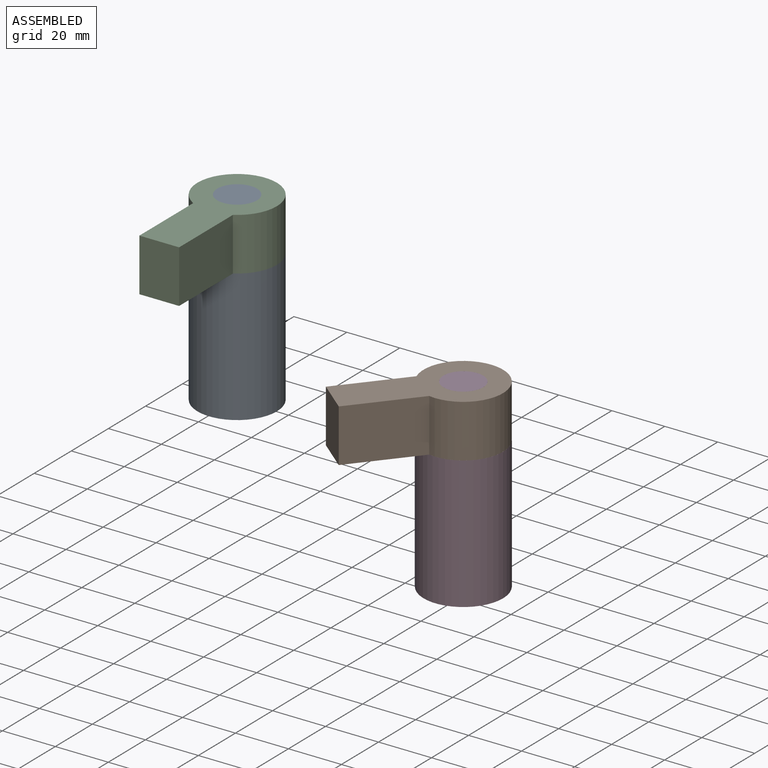
[diagram: assembled view]
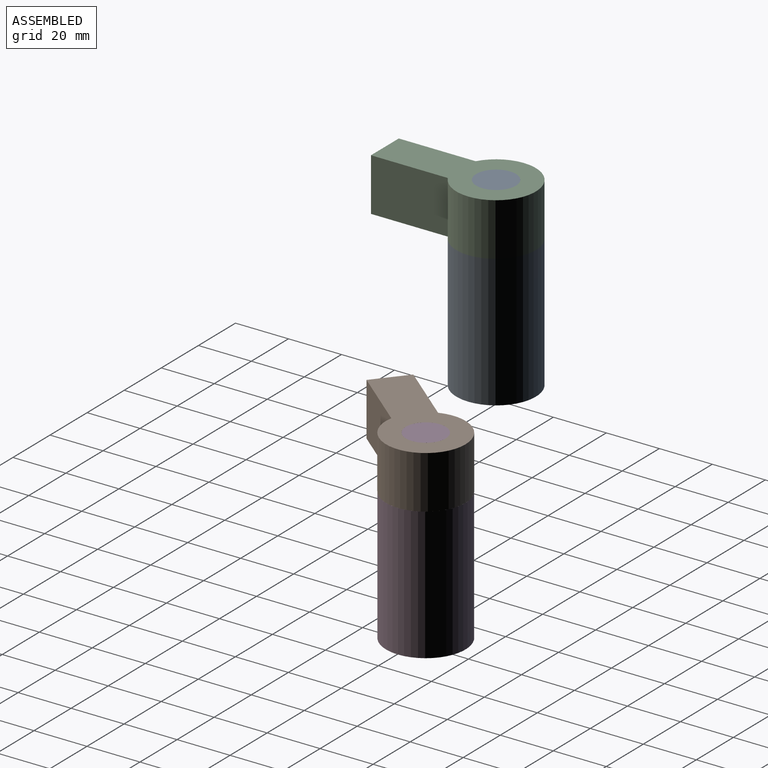
[diagram: assembled view, second angle]
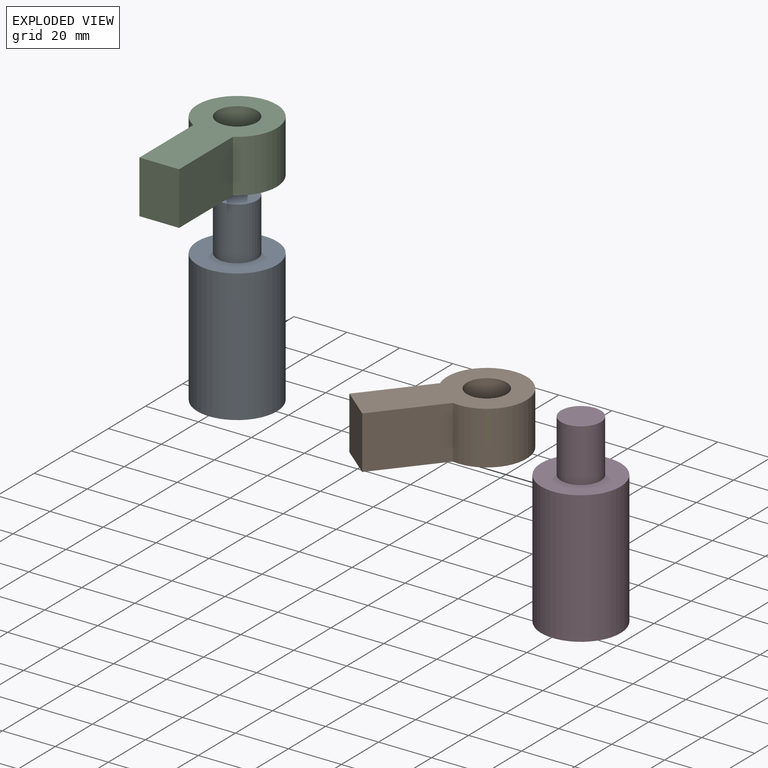
[diagram: exploded view]
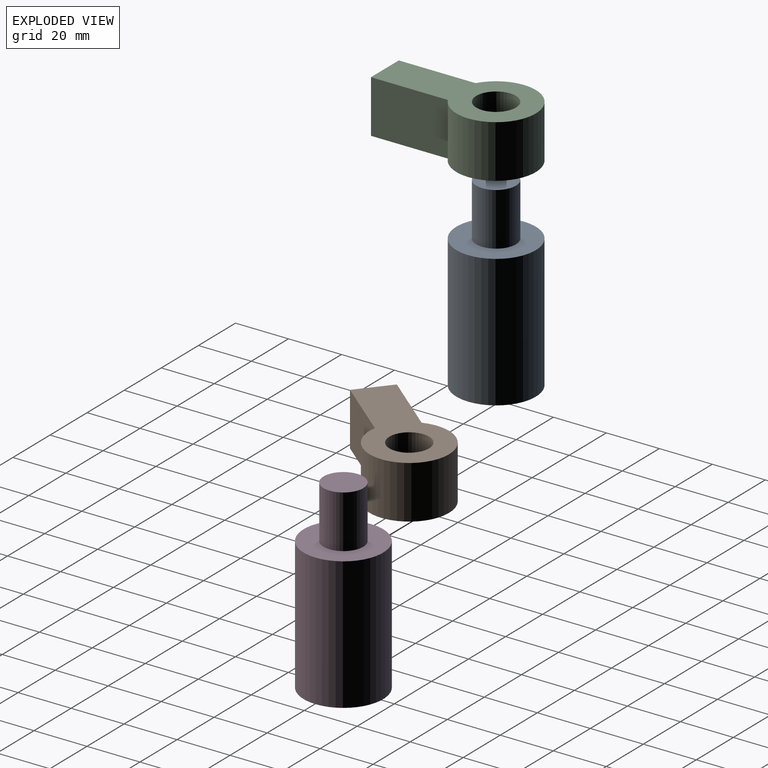
[diagram: exploded view, second angle]
ASSEMBLY  parts=4 mates=2
PART A: 5 faces, bbox 30x30x70 mm
  f0: cylinder r=15mm len=50mm, axis (0,0,-1), area 4712.4mm2, adj f1,f2
  f1: plane 30x30mm, normal (0,0,1), area 530.1mm2, adj f0,f3
  f2: plane 30x30mm, normal (0,0,-1), area 706.9mm2, adj f0
  f3: cylinder r=7.5mm len=20mm, axis (0,0,-1), area 942.5mm2, adj f1,f4
  f4: plane 15x15mm, normal (0,0,1), area 176.7mm2, adj f3
PART B: 7 faces, bbox 30x57x20 mm
  f0: cylinder r=15mm len=30mm, axis (0,0,-1), area 1570.8mm2, adj f2,f3,f4,f5
  f1: cylinder r=7.5mm len=20mm, axis (0,0,-1), area 942.5mm2, adj f2,f3
  f2: plane 57x30mm, normal (0,0,1), area 944.9mm2, adj f0,f1,f4,f5,f6
  f3: plane 57x30mm, normal (0,0,-1), area 944.9mm2, adj f0,f1,f4,f5,f6
  f4: plane 29.01x20mm, normal (1,0,0), area 580.2mm2, adj f0,f2,f3,f6
  f5: plane 29.01x20mm, normal (-1,0,0), area 580.2mm2, adj f0,f2,f3,f6
  f6: plane 20x15mm, normal (0,-1,0), area 300mm2, adj f2,f3,f4,f5
PART C: same geometry as B
PART D: same geometry as A
PLACE A t=(-170.25,-58.75,28.94)mm fixed
PLACE B rot(axis=(0,0,-1),39.7deg) t=(-100.48,-36.45,25.3)mm
PLACE C t=(-170.25,-58.75,78.94)mm
PLACE D t=(-100.48,-36.45,-24.7)mm fixed
MATE revolute B.f0 <-> D.f0  axis (0,0,-1) through (-100.48,-36.45,45.3)mm
MATE slider A.f0 <-> C.f0  axis (0,0,1) through (-170.25,-58.75,98.94)mm
